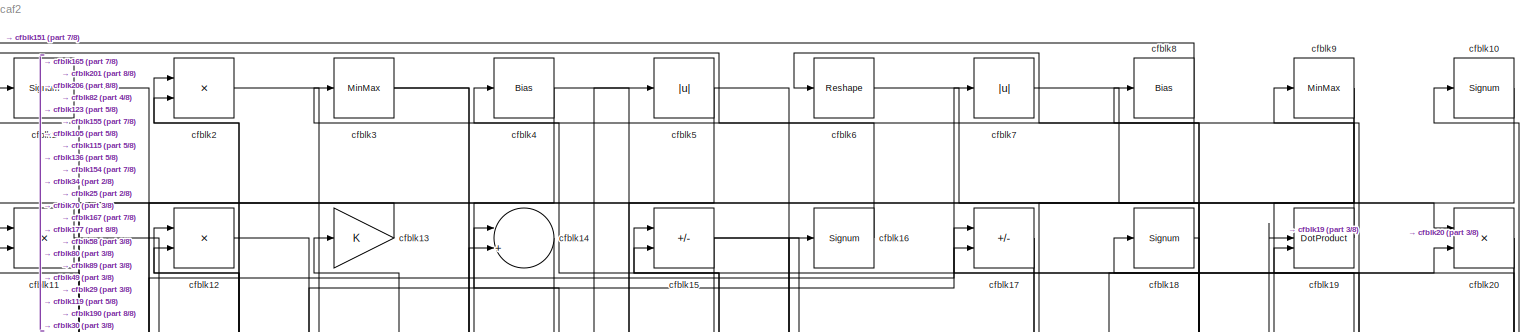
[diagram: root canvas - part 1/8, full width, top band]
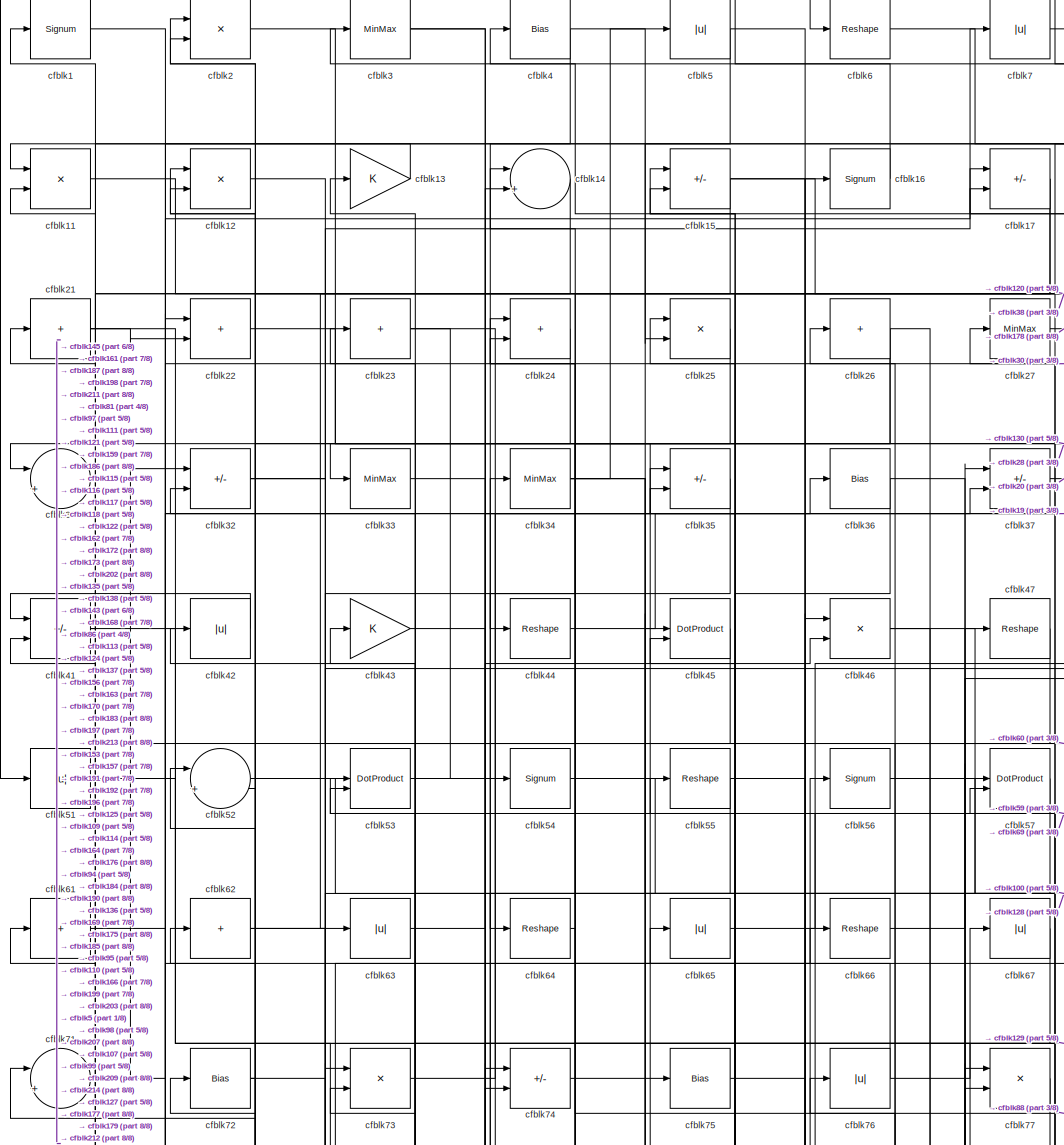
[diagram: root canvas - part 2/8, top center region]
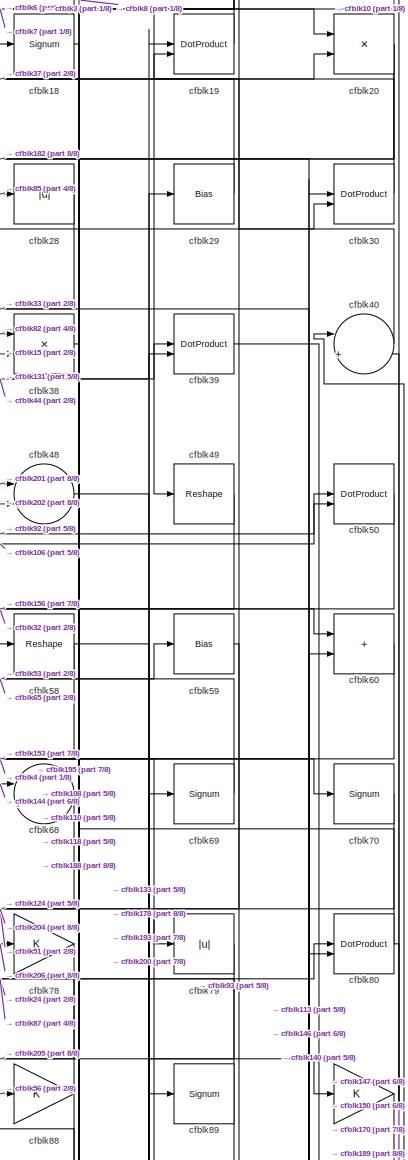
[diagram: root canvas - part 3/8, top right region]
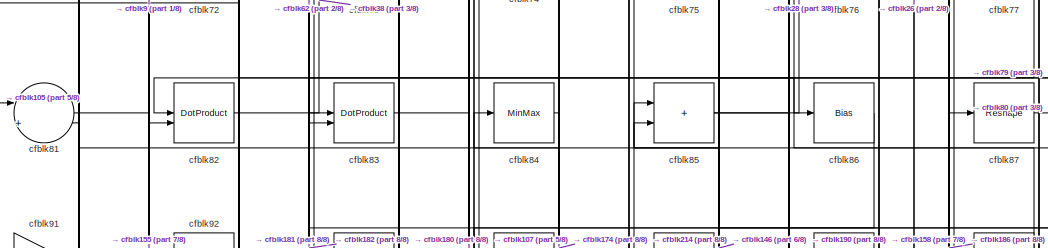
[diagram: root canvas - part 4/8, central region]
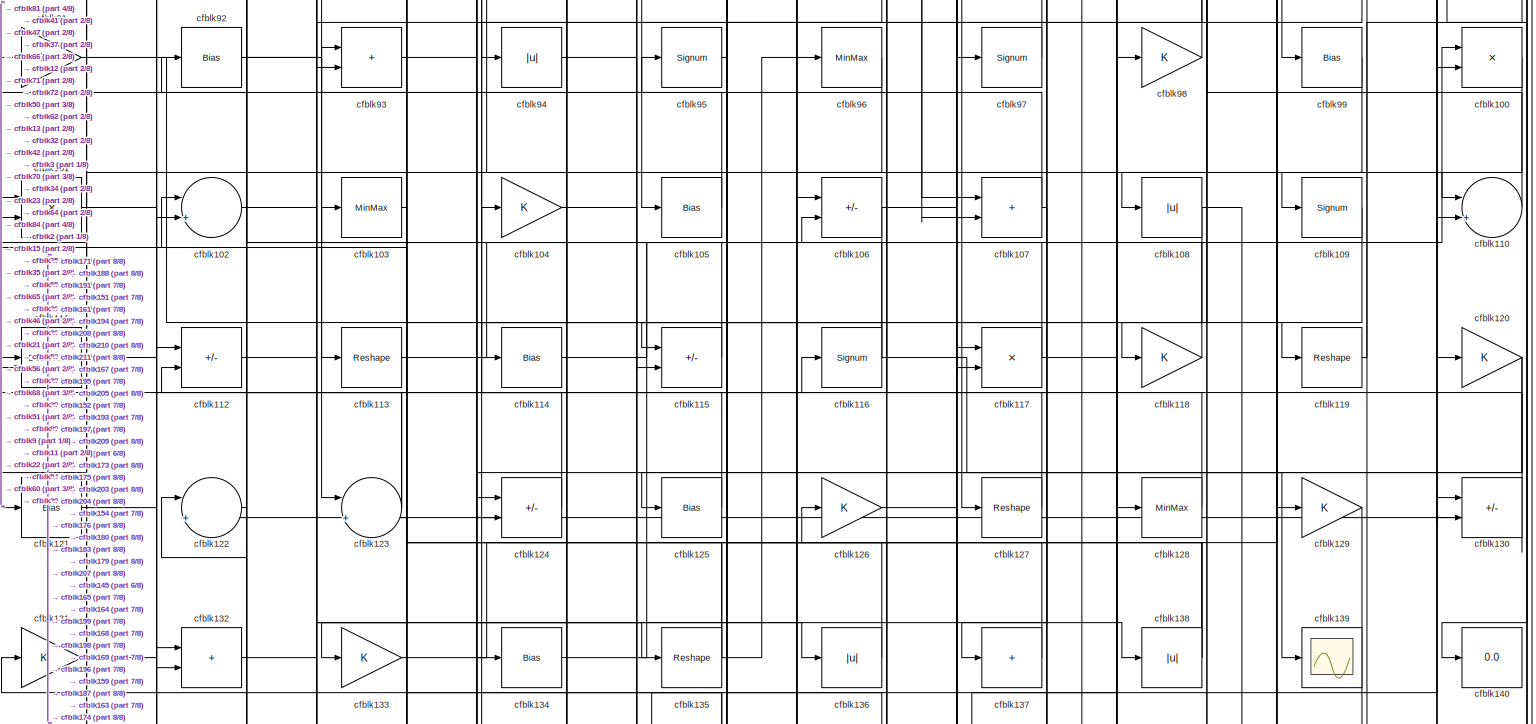
[diagram: root canvas - part 5/8, full width, middle band]
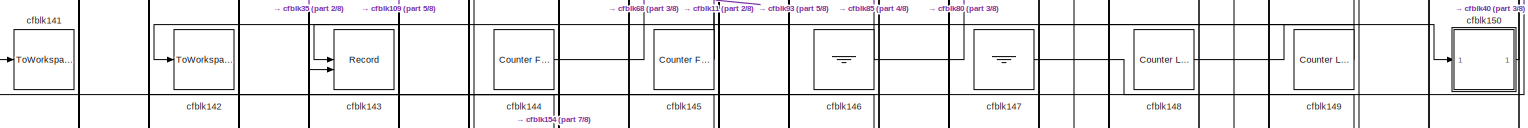
[diagram: root canvas - part 6/8, full width, middle band]
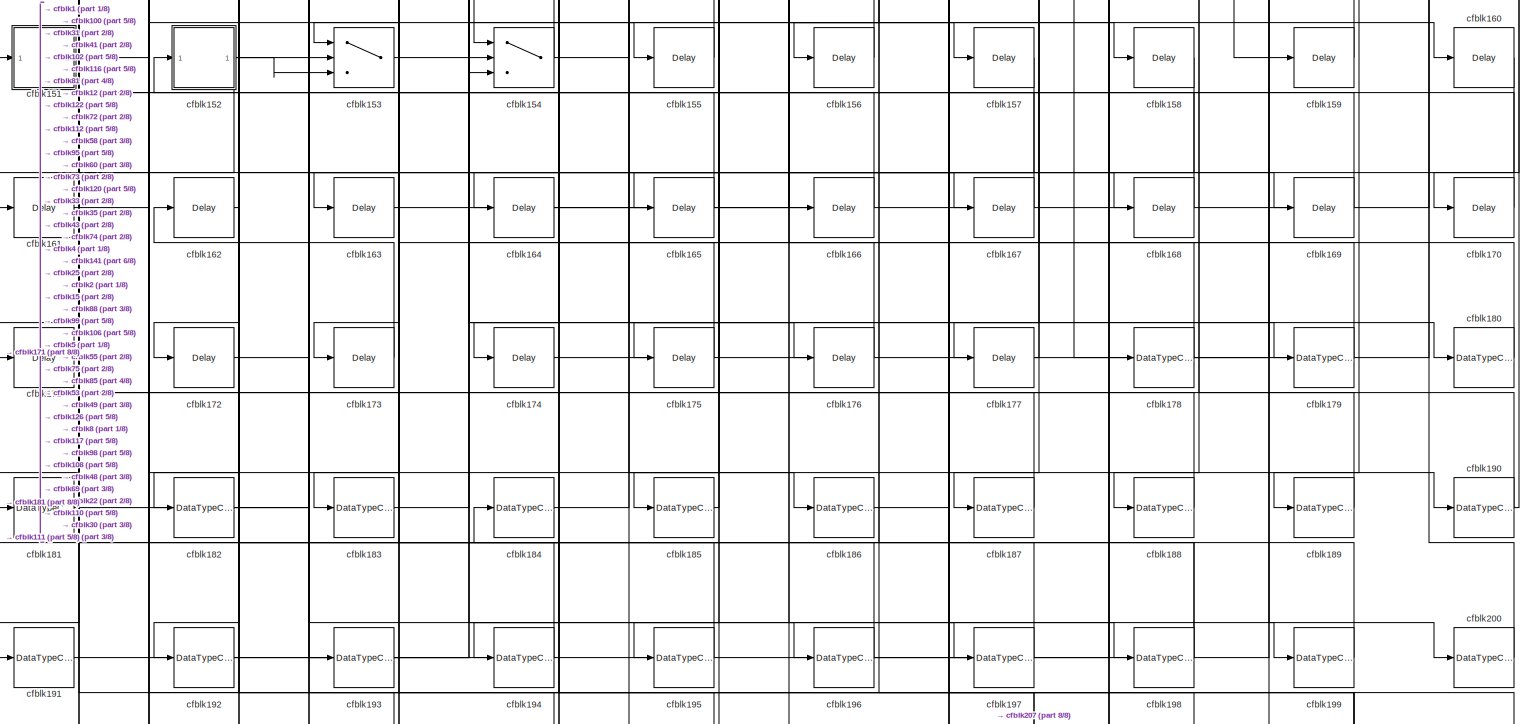
[diagram: root canvas - part 7/8, full width, bottom band]
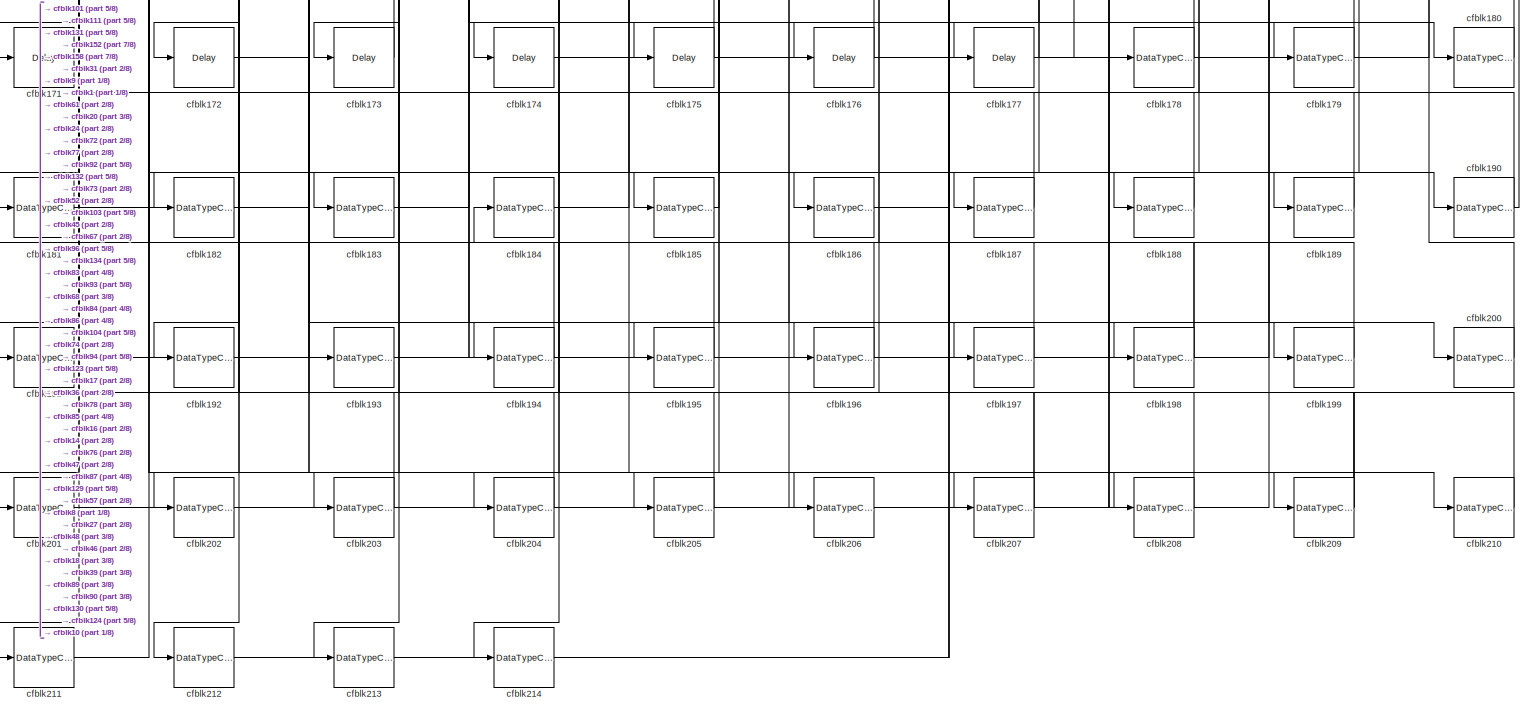
[diagram: root canvas - part 8/8, full width, bottom band]
MODEL slx_9d1c3afdcaf2
KIND model
CONFIG AbsTol = auto
CONFIG EnableMultiTasking = off
CONFIG FixedStep = auto
CONFIG MaxStep = auto
CONFIG MinStep = auto
CONFIG RelTol = 1e-3
CONFIG SampleTimeConstraint = Unconstrained
CONFIG SolverName = VariableStepAuto
CONFIG StartTime = 0.0
CONFIG StopTime = 10.0
BLOCK [Signum] cfblk1
BLOCK [Signum] cfblk10
BLOCK [Product] cfblk100
  Inputs = */
  RndMeth = Zero
  SaturateOnIntegerOverflow = on
BLOCK [Product] cfblk101
  Inputs = */
  RndMeth = Zero
  SaturateOnIntegerOverflow = on
BLOCK [Sum] cfblk102
  Inputs = |++
BLOCK [MinMax] cfblk103
BLOCK [Gain] cfblk104
BLOCK [Bias] cfblk105
  Bias = 0.0
  SaturateOnIntegerOverflow = off
BLOCK [Sum] cfblk106
  IconShape = rectangular
  Inputs = +-
BLOCK [Sum] cfblk107
  IconShape = rectangular
BLOCK [Abs] cfblk108
  SaturateOnIntegerOverflow = off
BLOCK [Signum] cfblk109
BLOCK [Product] cfblk11
  Inputs = */
  RndMeth = Zero
  SaturateOnIntegerOverflow = on
BLOCK [Sum] cfblk110
  Inputs = |++
BLOCK [DotProduct] cfblk111
  OutDataTypeStr = Inherit: Inherit via internal rule
BLOCK [Sum] cfblk112
  IconShape = rectangular
  Inputs = +-
BLOCK [Reshape] cfblk113
BLOCK [Bias] cfblk114
  Bias = 0.0
  SaturateOnIntegerOverflow = off
BLOCK [Sum] cfblk115
  IconShape = rectangular
  Inputs = +-
BLOCK [Signum] cfblk116
BLOCK [Product] cfblk117
  Inputs = */
  RndMeth = Zero
  SaturateOnIntegerOverflow = on
BLOCK [Gain] cfblk118
BLOCK [Reshape] cfblk119
BLOCK [Product] cfblk12
  Inputs = */
  RndMeth = Zero
  SaturateOnIntegerOverflow = on
BLOCK [Gain] cfblk120
BLOCK [Bias] cfblk121
  Bias = 0.0
  SaturateOnIntegerOverflow = off
BLOCK [Sum] cfblk122
  Inputs = |++
BLOCK [Sum] cfblk123
  Inputs = |++
BLOCK [Sum] cfblk124
  IconShape = rectangular
  Inputs = +-
BLOCK [Bias] cfblk125
  Bias = 0.0
  SaturateOnIntegerOverflow = off
BLOCK [Gain] cfblk126
BLOCK [Reshape] cfblk127
BLOCK [MinMax] cfblk128
BLOCK [Gain] cfblk129
BLOCK [Gain] cfblk13
BLOCK [Sum] cfblk130
  IconShape = rectangular
  Inputs = +-
BLOCK [Gain] cfblk131
BLOCK [Sum] cfblk132
  IconShape = rectangular
BLOCK [Gain] cfblk133
BLOCK [Bias] cfblk134
  Bias = 0.0
  SaturateOnIntegerOverflow = off
BLOCK [Reshape] cfblk135
BLOCK [Abs] cfblk136
  SaturateOnIntegerOverflow = off
BLOCK [Sum] cfblk137
  IconShape = rectangular
  Inputs = +
BLOCK [Abs] cfblk138
  SaturateOnIntegerOverflow = off
BLOCK [Scope] cfblk139
  Floating = off
  NumInputPorts = 1
  ScopeSpecificationString = Simulink.scopes.TimeScopeBlockCfg('CurrentConfiguration', extmgr.ConfigurationSet(extmgr.Configuration('Core','General UI',true),extmgr.Configuration('Core','Source UI',true),extmgr.Configuration('Sources','WiredSimulink',true,'DataLoggingVariableName','ScopeData2','DataLoggingSaveFormat','Array','DataLoggingLimitDataPoints',true,'DataLoggingDecimation','1'),extmgr.Configuration('Visuals','Time Do...<+868ch>
BLOCK [Sum] cfblk14
  Inputs = |++
BLOCK [Display] cfblk140
  Decimation = 1
BLOCK [ToWorkspace] cfblk141
  MaxDataPoints = inf
  SampleTime = -1
  SaveFormat = Timeseries
  VariableName = simout
BLOCK [ToWorkspace] cfblk142
  MaxDataPoints = inf
  SampleTime = -1
  SaveFormat = Timeseries
  VariableName = simout
BLOCK [Record] cfblk143
  CompatibilityTag = XY
  FileSettingsInternal = {"entries":[{"content":{"excelSettings":{"content":{},"type":"Streamout.ExcelSettings"}},"type":"Streamout.FileSettingStorage","uuid":""}],"packageUris":["http:\/\/schema.mathworks.com\/mf0\/streamout_blocks\/R2020a"],"version":"1.0"}
  Layout = [1 1]
  SignalsInternal = {"entries":[{"content":{"signals":[{"content":{"blockPath":[],"dimensions":[1],"domain":"","lineColor":"#a2142f","plots":[1],"port":1,"signalID":4356,"signalName":"XY Graph:1"},"type":"RecordBlkView.Signal","uuid":""},{"content":{"blockPath":[],"dimensions":[1],"domain":"","lineColor":"#139fff","plots":[1],"port":2,"signalID":4359,"signalName":"XY Graph:2"},"type":"RecordBlkView.Signal","uuid":""}...<+146ch>
  VisualizationBindings = {"xyplotplugin":{"info":[{"series":[{"bindingParametersList":[{"parameter":"X-Axis","signalID":4356,"signalName":"XY Graph:1"},{"parameter":"Y-Axis","signalID":4359,"signalName":"XY Graph:2"}],"seriesID":47375}],"subplotID":1}]}}
  st = -1
BLOCK [Reference] cfblk144  REF=hdlsllib/Sources/Counter
Free-Running
  SourceBlock = hdlsllib/Sources/Counter\nFree-Running
  SourceType = Counter Free-Running
BLOCK [Reference] cfblk145  REF=hdlsllib/Sources/Counter
Free-Running
  SourceBlock = hdlsllib/Sources/Counter\nFree-Running
  SourceType = Counter Free-Running
BLOCK [Ground] cfblk146
BLOCK [Ground] cfblk147
BLOCK [Reference] cfblk148  REF=hdlsllib/Sources/Counter
Limited
  SourceBlock = hdlsllib/Sources/Counter\nLimited
  SourceType = Counter Limited
BLOCK [Reference] cfblk149  REF=hdlsllib/Sources/Counter
Limited
  SourceBlock = hdlsllib/Sources/Counter\nLimited
  SourceType = Counter Limited
BLOCK [Sum] cfblk15
  IconShape = rectangular
  Inputs = +-
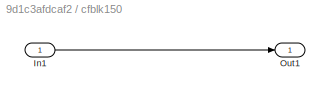
BLOCK [SubSystem] cfblk150
  LibrarySourceBlock = hdlsllib/Ports &\nSubsystems/Subsystem
BLOCK [Inport] cfblk150/In1
BLOCK [Outport] cfblk150/Out1
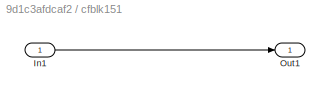
BLOCK [SubSystem] cfblk151
  LibrarySourceBlock = hdlsllib/Ports &\nSubsystems/Subsystem
BLOCK [Inport] cfblk151/In1
BLOCK [Outport] cfblk151/Out1
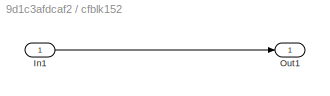
BLOCK [SubSystem] cfblk152
  LibrarySourceBlock = hdlsllib/Ports &\nSubsystems/Subsystem
BLOCK [Inport] cfblk152/In1
BLOCK [Outport] cfblk152/Out1
BLOCK [Switch] cfblk153
  InputSameDT = off
  SaturateOnIntegerOverflow = off
BLOCK [Switch] cfblk154
  InputSameDT = off
  SaturateOnIntegerOverflow = off
BLOCK [Delay] cfblk155
  InputPortMap = u0
  SampleTime = 1
BLOCK [Delay] cfblk156
  InputPortMap = u0
  SampleTime = 1
BLOCK [Delay] cfblk157
  InputPortMap = u0
  SampleTime = 1
BLOCK [Delay] cfblk158
  InputPortMap = u0
  SampleTime = 1
BLOCK [Delay] cfblk159
  InputPortMap = u0
  SampleTime = 1
BLOCK [Signum] cfblk16
BLOCK [Delay] cfblk160
  InputPortMap = u0
  SampleTime = 1
BLOCK [Delay] cfblk161
  InputPortMap = u0
  SampleTime = 1
BLOCK [Delay] cfblk162
  InputPortMap = u0
  SampleTime = 1
BLOCK [Delay] cfblk163
  InputPortMap = u0
  SampleTime = 1
BLOCK [Delay] cfblk164
  InputPortMap = u0
  SampleTime = 1
BLOCK [Delay] cfblk165
  InputPortMap = u0
  SampleTime = 1
BLOCK [Delay] cfblk166
  InputPortMap = u0
  SampleTime = 1
BLOCK [Delay] cfblk167
  InputPortMap = u0
  SampleTime = 1
BLOCK [Delay] cfblk168
  InputPortMap = u0
  SampleTime = 1
BLOCK [Delay] cfblk169
  InputPortMap = u0
  SampleTime = 1
BLOCK [Sum] cfblk17
  IconShape = rectangular
  Inputs = +-
BLOCK [Delay] cfblk170
  InputPortMap = u0
  SampleTime = 1
BLOCK [Delay] cfblk171
  InputPortMap = u0
  SampleTime = 1
BLOCK [Delay] cfblk172
  InputPortMap = u0
  SampleTime = 1
BLOCK [Delay] cfblk173
  InputPortMap = u0
  SampleTime = 1
BLOCK [Delay] cfblk174
  InputPortMap = u0
  SampleTime = 1
BLOCK [Delay] cfblk175
  InputPortMap = u0
  SampleTime = 1
BLOCK [Delay] cfblk176
  InputPortMap = u0
  SampleTime = 1
BLOCK [Delay] cfblk177
  InputPortMap = u0
  SampleTime = 1
BLOCK [DataTypeConversion] cfblk178
  RndMeth = Floor
  SaturateOnIntegerOverflow = off
BLOCK [DataTypeConversion] cfblk179
  OutDataTypeStr = uint8
  RndMeth = Floor
  SaturateOnIntegerOverflow = off
BLOCK [Signum] cfblk18
BLOCK [DataTypeConversion] cfblk180
  OutDataTypeStr = uint8
  RndMeth = Floor
  SaturateOnIntegerOverflow = off
BLOCK [DataTypeConversion] cfblk181
  OutDataTypeStr = uint8
  RndMeth = Floor
  SaturateOnIntegerOverflow = off
BLOCK [DataTypeConversion] cfblk182
  OutDataTypeStr = uint8
  RndMeth = Floor
  SaturateOnIntegerOverflow = off
BLOCK [DataTypeConversion] cfblk183
  OutDataTypeStr = uint8
  RndMeth = Floor
  SaturateOnIntegerOverflow = off
BLOCK [DataTypeConversion] cfblk184
  OutDataTypeStr = uint8
  RndMeth = Floor
  SaturateOnIntegerOverflow = off
BLOCK [DataTypeConversion] cfblk185
  OutDataTypeStr = uint8
  RndMeth = Floor
  SaturateOnIntegerOverflow = off
BLOCK [DataTypeConversion] cfblk186
  OutDataTypeStr = uint8
  RndMeth = Floor
  SaturateOnIntegerOverflow = off
BLOCK [DataTypeConversion] cfblk187
  OutDataTypeStr = uint8
  RndMeth = Floor
  SaturateOnIntegerOverflow = off
BLOCK [DataTypeConversion] cfblk188
  OutDataTypeStr = uint8
  RndMeth = Floor
  SaturateOnIntegerOverflow = off
BLOCK [DataTypeConversion] cfblk189
  OutDataTypeStr = uint8
  RndMeth = Floor
  SaturateOnIntegerOverflow = off
BLOCK [DotProduct] cfblk19
  OutDataTypeStr = Inherit: Inherit via internal rule
BLOCK [DataTypeConversion] cfblk190
  RndMeth = Floor
  SaturateOnIntegerOverflow = off
BLOCK [DataTypeConversion] cfblk191
  OutDataTypeStr = uint8
  RndMeth = Floor
  SaturateOnIntegerOverflow = off
BLOCK [DataTypeConversion] cfblk192
  OutDataTypeStr = uint8
  RndMeth = Floor
  SaturateOnIntegerOverflow = off
BLOCK [DataTypeConversion] cfblk193
  OutDataTypeStr = uint8
  RndMeth = Floor
  SaturateOnIntegerOverflow = off
BLOCK [DataTypeConversion] cfblk194
  OutDataTypeStr = uint8
  RndMeth = Floor
  SaturateOnIntegerOverflow = off
BLOCK [DataTypeConversion] cfblk195
  OutDataTypeStr = uint8
  RndMeth = Floor
  SaturateOnIntegerOverflow = off
BLOCK [DataTypeConversion] cfblk196
  RndMeth = Floor
  SaturateOnIntegerOverflow = off
BLOCK [DataTypeConversion] cfblk197
  OutDataTypeStr = uint8
  RndMeth = Floor
  SaturateOnIntegerOverflow = off
BLOCK [DataTypeConversion] cfblk198
  RndMeth = Floor
  SaturateOnIntegerOverflow = off
BLOCK [DataTypeConversion] cfblk199
  OutDataTypeStr = uint8
  RndMeth = Floor
  SaturateOnIntegerOverflow = off
BLOCK [Product] cfblk2
  Inputs = */
  RndMeth = Zero
  SaturateOnIntegerOverflow = on
BLOCK [Product] cfblk20
  Inputs = */
  RndMeth = Zero
  SaturateOnIntegerOverflow = on
BLOCK [DataTypeConversion] cfblk200
  OutDataTypeStr = uint8
  RndMeth = Floor
  SaturateOnIntegerOverflow = off
BLOCK [DataTypeConversion] cfblk201
  OutDataTypeStr = uint8
  RndMeth = Floor
  SaturateOnIntegerOverflow = off
BLOCK [DataTypeConversion] cfblk202
  OutDataTypeStr = uint8
  RndMeth = Floor
  SaturateOnIntegerOverflow = off
BLOCK [DataTypeConversion] cfblk203
  RndMeth = Floor
  SaturateOnIntegerOverflow = off
BLOCK [DataTypeConversion] cfblk204
  OutDataTypeStr = uint8
  RndMeth = Floor
  SaturateOnIntegerOverflow = off
BLOCK [DataTypeConversion] cfblk205
  RndMeth = Floor
  SaturateOnIntegerOverflow = off
BLOCK [DataTypeConversion] cfblk206
  OutDataTypeStr = uint8
  RndMeth = Floor
  SaturateOnIntegerOverflow = off
BLOCK [DataTypeConversion] cfblk207
  RndMeth = Floor
  SaturateOnIntegerOverflow = off
BLOCK [DataTypeConversion] cfblk208
  OutDataTypeStr = uint8
  RndMeth = Floor
  SaturateOnIntegerOverflow = off
BLOCK [DataTypeConversion] cfblk209
  RndMeth = Floor
  SaturateOnIntegerOverflow = off
BLOCK [Sum] cfblk21
  IconShape = rectangular
  Inputs = +
BLOCK [DataTypeConversion] cfblk210
  OutDataTypeStr = uint8
  RndMeth = Floor
  SaturateOnIntegerOverflow = off
BLOCK [DataTypeConversion] cfblk211
  OutDataTypeStr = uint8
  RndMeth = Floor
  SaturateOnIntegerOverflow = off
BLOCK [DataTypeConversion] cfblk212
  OutDataTypeStr = uint8
  RndMeth = Floor
  SaturateOnIntegerOverflow = off
BLOCK [DataTypeConversion] cfblk213
  OutDataTypeStr = uint8
  RndMeth = Floor
  SaturateOnIntegerOverflow = off
BLOCK [DataTypeConversion] cfblk214
  OutDataTypeStr = uint8
  RndMeth = Floor
  SaturateOnIntegerOverflow = off
BLOCK [Sum] cfblk22
  IconShape = rectangular
BLOCK [Sum] cfblk23
  IconShape = rectangular
  Inputs = +
BLOCK [Sum] cfblk24
  IconShape = rectangular
BLOCK [Product] cfblk25
  Inputs = */
  RndMeth = Zero
  SaturateOnIntegerOverflow = on
BLOCK [Sum] cfblk26
  IconShape = rectangular
  Inputs = +
BLOCK [MinMax] cfblk27
BLOCK [Abs] cfblk28
  SaturateOnIntegerOverflow = off
BLOCK [Bias] cfblk29
  Bias = 0.0
  SaturateOnIntegerOverflow = off
BLOCK [MinMax] cfblk3
BLOCK [DotProduct] cfblk30
  OutDataTypeStr = Inherit: Inherit via internal rule
BLOCK [Sum] cfblk31
  Inputs = |++
BLOCK [Sum] cfblk32
  IconShape = rectangular
  Inputs = +-
BLOCK [MinMax] cfblk33
BLOCK [MinMax] cfblk34
BLOCK [Sum] cfblk35
  IconShape = rectangular
  Inputs = +-
BLOCK [Bias] cfblk36
  Bias = 0.0
  SaturateOnIntegerOverflow = off
BLOCK [Sum] cfblk37
  IconShape = rectangular
  Inputs = +-
BLOCK [Product] cfblk38
  Inputs = */
  RndMeth = Zero
  SaturateOnIntegerOverflow = on
BLOCK [DotProduct] cfblk39
  OutDataTypeStr = Inherit: Inherit via internal rule
BLOCK [Bias] cfblk4
  Bias = 0.0
  SaturateOnIntegerOverflow = off
BLOCK [Sum] cfblk40
  Inputs = |++
BLOCK [Sum] cfblk41
  IconShape = rectangular
  Inputs = +-
BLOCK [Abs] cfblk42
  SaturateOnIntegerOverflow = off
BLOCK [Gain] cfblk43
BLOCK [Reshape] cfblk44
BLOCK [DotProduct] cfblk45
  OutDataTypeStr = Inherit: Inherit via internal rule
BLOCK [Product] cfblk46
  Inputs = */
  RndMeth = Zero
  SaturateOnIntegerOverflow = on
BLOCK [Reshape] cfblk47
BLOCK [Sum] cfblk48
  Inputs = |++
BLOCK [Reshape] cfblk49
BLOCK [Abs] cfblk5
  SaturateOnIntegerOverflow = off
BLOCK [DotProduct] cfblk50
  OutDataTypeStr = Inherit: Inherit via internal rule
BLOCK [Abs] cfblk51
  SaturateOnIntegerOverflow = off
BLOCK [Sum] cfblk52
  Inputs = |++
BLOCK [DotProduct] cfblk53
  OutDataTypeStr = Inherit: Inherit via internal rule
BLOCK [Signum] cfblk54
BLOCK [Reshape] cfblk55
BLOCK [Signum] cfblk56
BLOCK [DotProduct] cfblk57
  OutDataTypeStr = Inherit: Inherit via internal rule
BLOCK [Reshape] cfblk58
BLOCK [Bias] cfblk59
  Bias = 0.0
  SaturateOnIntegerOverflow = off
BLOCK [Reshape] cfblk6
BLOCK [Sum] cfblk60
  IconShape = rectangular
BLOCK [Sum] cfblk61
  IconShape = rectangular
  Inputs = +
BLOCK [Sum] cfblk62
  IconShape = rectangular
  Inputs = +
BLOCK [Abs] cfblk63
  SaturateOnIntegerOverflow = off
BLOCK [Reshape] cfblk64
BLOCK [Abs] cfblk65
  SaturateOnIntegerOverflow = off
BLOCK [Reshape] cfblk66
BLOCK [Abs] cfblk67
  SaturateOnIntegerOverflow = off
BLOCK [Sum] cfblk68
  Inputs = |++
BLOCK [Signum] cfblk69
BLOCK [Abs] cfblk7
  SaturateOnIntegerOverflow = off
BLOCK [Signum] cfblk70
BLOCK [Sum] cfblk71
  Inputs = |++
BLOCK [Bias] cfblk72
  Bias = 0.0
  SaturateOnIntegerOverflow = off
BLOCK [Product] cfblk73
  Inputs = */
  RndMeth = Zero
  SaturateOnIntegerOverflow = on
BLOCK [Sum] cfblk74
  IconShape = rectangular
  Inputs = +-
BLOCK [Bias] cfblk75
  Bias = 0.0
  SaturateOnIntegerOverflow = off
BLOCK [Abs] cfblk76
  SaturateOnIntegerOverflow = off
BLOCK [Product] cfblk77
  Inputs = */
  RndMeth = Zero
  SaturateOnIntegerOverflow = on
BLOCK [Gain] cfblk78
BLOCK [Abs] cfblk79
  SaturateOnIntegerOverflow = off
BLOCK [Bias] cfblk8
  Bias = 0.0
  SaturateOnIntegerOverflow = off
BLOCK [DotProduct] cfblk80
  OutDataTypeStr = Inherit: Inherit via internal rule
BLOCK [Sum] cfblk81
  Inputs = |++
BLOCK [DotProduct] cfblk82
  OutDataTypeStr = Inherit: Inherit via internal rule
BLOCK [DotProduct] cfblk83
  OutDataTypeStr = Inherit: Inherit via internal rule
BLOCK [MinMax] cfblk84
BLOCK [Sum] cfblk85
  IconShape = rectangular
BLOCK [Bias] cfblk86
  Bias = 0.0
  SaturateOnIntegerOverflow = off
BLOCK [Reshape] cfblk87
BLOCK [Gain] cfblk88
BLOCK [Signum] cfblk89
BLOCK [MinMax] cfblk9
BLOCK [Gain] cfblk90
BLOCK [Gain] cfblk91
BLOCK [Bias] cfblk92
  Bias = 0.0
  SaturateOnIntegerOverflow = off
BLOCK [Sum] cfblk93
  IconShape = rectangular
BLOCK [Abs] cfblk94
  SaturateOnIntegerOverflow = off
BLOCK [Signum] cfblk95
BLOCK [MinMax] cfblk96
BLOCK [Signum] cfblk97
BLOCK [Gain] cfblk98
BLOCK [Bias] cfblk99
  Bias = 0.0
  SaturateOnIntegerOverflow = off
LINE cfblk100:1 -> cfblk191:1
LINE cfblk101:1 -> cfblk208:1
LINE cfblk102:1 -> cfblk197:1
LINE cfblk103:1 -> cfblk203:1
LINE cfblk104:1 -> cfblk207:1
LINE cfblk105:1 -> cfblk81:1
NET cfblk106:1 -> cfblk133:1, cfblk50:2
NET cfblk107:1 -> cfblk137:1, cfblk84:1
NET cfblk108:1 -> cfblk154:2, cfblk159:1
LINE cfblk109:1 -> cfblk143:1
LINE cfblk10:1 -> cfblk49:1
LINE cfblk110:1 -> cfblk68:2
LINE cfblk111:1 -> cfblk37:2
LINE cfblk112:1 -> cfblk193:1
LINE cfblk113:1 -> cfblk60:2
LINE cfblk114:1 -> cfblk106:2
LINE cfblk115:1 -> cfblk12:1
NET cfblk116:1 -> cfblk115:1, cfblk139:1, cfblk71:1
NET cfblk117:1 -> cfblk169:1, cfblk72:1
LINE cfblk118:1 -> cfblk62:1
LINE cfblk119:1 -> cfblk9:1
LINE cfblk11:1 -> cfblk120:1
NET cfblk120:1 -> cfblk125:1, cfblk154:3
LINE cfblk121:1 -> cfblk66:1
LINE cfblk122:1 -> cfblk52:2
NET cfblk123:1 -> cfblk102:1, cfblk2:1
LINE cfblk124:1 -> cfblk23:1
LINE cfblk125:1 -> cfblk34:1
LINE cfblk126:1 -> cfblk198:1
LINE cfblk127:1 -> cfblk65:1
LINE cfblk128:1 -> cfblk26:1
LINE cfblk129:1 -> cfblk187:1
LINE cfblk12:1 -> cfblk138:1
NET cfblk130:1 -> cfblk122:2, cfblk91:1
LINE cfblk131:1 -> cfblk39:1
LINE cfblk132:1 -> cfblk209:1
LINE cfblk133:1 -> cfblk29:1
LINE cfblk134:1 -> cfblk100:1
NET cfblk135:1 -> cfblk101:1, cfblk42:1, cfblk96:1
LINE cfblk136:1 -> cfblk35:1
LINE cfblk137:1 -> cfblk13:1
NET cfblk138:1 -> cfblk25:1, cfblk32:2, cfblk55:1
LINE cfblk13:1 -> cfblk11:1
LINE cfblk144:1 -> cfblk68:1
NET cfblk145:1 -> cfblk11:2, cfblk93:1
NET cfblk146:1 -> cfblk80:2, cfblk85:1
LINE cfblk147:1 -> cfblk40:1
LINE cfblk148:1 -> cfblk150:1
LINE cfblk149:1 -> cfblk142:1
LINE cfblk14:1 -> cfblk31:1
LINE cfblk150/In1:1 -> cfblk150/Out1:1
LINE cfblk150:1 -> cfblk40:2
LINE cfblk151/In1:1 -> cfblk151/Out1:1
LINE cfblk151:1 -> cfblk116:1
LINE cfblk152/In1:1 -> cfblk152/Out1:1
NET cfblk152:1 -> cfblk153:3, cfblk171:1, cfblk95:1
LINE cfblk153:1 -> cfblk35:2
NET cfblk154:1 -> cfblk141:1, cfblk160:1
LINE cfblk155:1 -> cfblk2:2
LINE cfblk156:1 -> cfblk53:2
LINE cfblk157:1 -> cfblk192:1
LINE cfblk158:1 -> cfblk181:1
LINE cfblk159:1 -> cfblk22:1
NET cfblk15:1 -> cfblk110:1, cfblk38:2, cfblk71:2
LINE cfblk160:1 -> cfblk194:1
LINE cfblk161:1 -> cfblk102:2
LINE cfblk162:1 -> cfblk12:2
LINE cfblk163:1 -> cfblk110:2
LINE cfblk164:1 -> cfblk106:1
LINE cfblk165:1 -> cfblk1:1
LINE cfblk166:1 -> cfblk31:2
LINE cfblk167:1 -> cfblk122:1
LINE cfblk168:1 -> cfblk117:1
LINE cfblk169:1 -> cfblk15:2
LINE cfblk16:1 -> cfblk51:1
LINE cfblk170:1 -> cfblk73:2
LINE cfblk171:1 -> cfblk101:2
LINE cfblk172:1 -> cfblk210:1
LINE cfblk173:1 -> cfblk52:1
LINE cfblk174:1 -> cfblk130:1
LINE cfblk175:1 -> cfblk123:2
LINE cfblk176:1 -> cfblk14:1
LINE cfblk177:1 -> cfblk57:2
NET cfblk178:1 -> cfblk46:1, cfblk89:1
LINE cfblk179:1 -> cfblk27:1
NET cfblk17:1 -> cfblk185:1, cfblk63:1
LINE cfblk180:1 -> cfblk124:1
LINE cfblk181:1 -> cfblk83:1
LINE cfblk182:1 -> cfblk83:2
LINE cfblk183:1 -> cfblk134:1
LINE cfblk184:1 -> cfblk45:1
LINE cfblk185:1 -> cfblk45:2
LINE cfblk186:1 -> cfblk87:1
LINE cfblk187:1 -> cfblk61:1
LINE cfblk188:1 -> cfblk131:1
LINE cfblk189:1 -> cfblk18:1
LINE cfblk18:1 -> cfblk188:1
NET cfblk190:1 -> cfblk10:1, cfblk85:2
LINE cfblk191:1 -> cfblk74:1
LINE cfblk192:1 -> cfblk74:2
LINE cfblk193:1 -> cfblk69:1
LINE cfblk194:1 -> cfblk112:1
LINE cfblk195:1 -> cfblk112:2
NET cfblk196:1 -> cfblk111:1, cfblk98:1
LINE cfblk197:1 -> cfblk43:1
NET cfblk198:1 -> cfblk162:1, cfblk41:2
LINE cfblk199:1 -> cfblk126:1
LINE cfblk19:1 -> cfblk6:1
LINE cfblk1:1 -> cfblk206:1
LINE cfblk200:1 -> cfblk30:1
LINE cfblk201:1 -> cfblk48:1
LINE cfblk202:1 -> cfblk48:2
NET cfblk203:1 -> cfblk111:2, cfblk16:1
LINE cfblk204:1 -> cfblk103:1
NET cfblk205:1 -> cfblk39:2, cfblk92:1
LINE cfblk206:1 -> cfblk78:1
NET cfblk207:1 -> cfblk152:1, cfblk76:1
LINE cfblk208:1 -> cfblk104:1
NET cfblk209:1 -> cfblk184:1, cfblk57:1, cfblk73:1
NET cfblk20:1 -> cfblk182:1, cfblk44:1
LINE cfblk210:1 -> cfblk132:1
LINE cfblk211:1 -> cfblk132:2
LINE cfblk212:1 -> cfblk47:1
LINE cfblk213:1 -> cfblk77:1
LINE cfblk214:1 -> cfblk77:2
NET cfblk21:1 -> cfblk113:1, cfblk22:2
LINE cfblk22:1 -> cfblk130:2
NET cfblk23:1 -> cfblk109:1, cfblk54:1
LINE cfblk24:1 -> cfblk172:1
LINE cfblk25:1 -> cfblk164:1
NET cfblk26:1 -> cfblk107:2, cfblk114:1, cfblk81:2
LINE cfblk27:1 -> cfblk178:1
LINE cfblk28:1 -> cfblk33:1
LINE cfblk29:1 -> cfblk4:1
LINE cfblk2:1 -> cfblk105:1
LINE cfblk30:1 -> cfblk7:1
LINE cfblk31:1 -> cfblk211:1
NET cfblk32:1 -> cfblk17:2, cfblk60:1
LINE cfblk33:1 -> cfblk157:1
NET cfblk34:1 -> cfblk117:2, cfblk5:1, cfblk75:1
LINE cfblk35:1 -> cfblk143:2
NET cfblk36:1 -> cfblk175:1, cfblk97:1
LINE cfblk37:1 -> cfblk20:2
LINE cfblk38:1 -> cfblk108:1
LINE cfblk39:1 -> cfblk140:1
NET cfblk3:1 -> cfblk115:2, cfblk136:1
LINE cfblk40:1 -> cfblk19:2
NET cfblk41:1 -> cfblk127:1, cfblk161:1
LINE cfblk42:1 -> cfblk41:1
LINE cfblk43:1 -> cfblk196:1
LINE cfblk44:1 -> cfblk19:1
LINE cfblk45:1 -> cfblk183:1
NET cfblk46:1 -> cfblk107:1, cfblk99:1
LINE cfblk47:1 -> cfblk121:1
LINE cfblk48:1 -> cfblk200:1
LINE cfblk49:1 -> cfblk156:1
NET cfblk4:1 -> cfblk154:1, cfblk70:1
LINE cfblk50:1 -> cfblk118:1
NET cfblk51:1 -> cfblk129:1, cfblk30:2
LINE cfblk52:1 -> cfblk128:1
LINE cfblk53:1 -> cfblk14:2
LINE cfblk54:1 -> cfblk100:2
NET cfblk55:1 -> cfblk163:1, cfblk199:1
LINE cfblk56:1 -> cfblk88:1
LINE cfblk57:1 -> cfblk64:1
NET cfblk58:1 -> cfblk153:2, cfblk90:1
LINE cfblk59:1 -> cfblk79:1
NET cfblk5:1 -> cfblk167:1, cfblk25:2
LINE cfblk60:1 -> cfblk153:1
LINE cfblk61:1 -> cfblk186:1
NET cfblk62:1 -> cfblk135:1, cfblk86:1
LINE cfblk63:1 -> cfblk46:2
LINE cfblk64:1 -> cfblk94:1
LINE cfblk65:1 -> cfblk59:1
LINE cfblk66:1 -> cfblk37:1
LINE cfblk67:1 -> cfblk213:1
LINE cfblk68:1 -> cfblk204:1
LINE cfblk69:1 -> cfblk53:1
LINE cfblk6:1 -> cfblk58:1
LINE cfblk70:1 -> cfblk124:2
NET cfblk71:1 -> cfblk17:1, cfblk32:1
NET cfblk72:1 -> cfblk168:1, cfblk202:1
LINE cfblk73:1 -> cfblk36:1
LINE cfblk74:1 -> cfblk190:1
LINE cfblk75:1 -> cfblk166:1
NET cfblk76:1 -> cfblk24:2, cfblk67:1
LINE cfblk77:1 -> cfblk212:1
LINE cfblk78:1 -> cfblk205:1
LINE cfblk79:1 -> cfblk82:1
LINE cfblk7:1 -> cfblk20:1
NET cfblk80:1 -> cfblk170:1, cfblk3:1
LINE cfblk81:1 -> cfblk155:1
LINE cfblk82:1 -> cfblk38:1
LINE cfblk83:1 -> cfblk180:1
LINE cfblk84:1 -> cfblk214:1
NET cfblk85:1 -> cfblk158:1, cfblk28:1
LINE cfblk86:1 -> cfblk174:1
LINE cfblk87:1 -> cfblk80:1
NET cfblk88:1 -> cfblk195:1, cfblk24:1
NET cfblk89:1 -> cfblk8:1, cfblk93:2
NET cfblk8:1 -> cfblk151:1, cfblk177:1
LINE cfblk90:1 -> cfblk189:1
LINE cfblk91:1 -> cfblk119:1
NET cfblk92:1 -> cfblk123:1, cfblk50:1
LINE cfblk93:1 -> cfblk176:1
LINE cfblk94:1 -> cfblk179:1
LINE cfblk95:1 -> cfblk15:1
LINE cfblk96:1 -> cfblk173:1
LINE cfblk97:1 -> cfblk21:1
LINE cfblk98:1 -> cfblk56:1
LINE cfblk99:1 -> cfblk165:1
NET cfblk9:1 -> cfblk201:1, cfblk82:2
note: NET lines group one-source signal fan-out (src -> all destinations, sorted); 1:1 wires keep LINE
